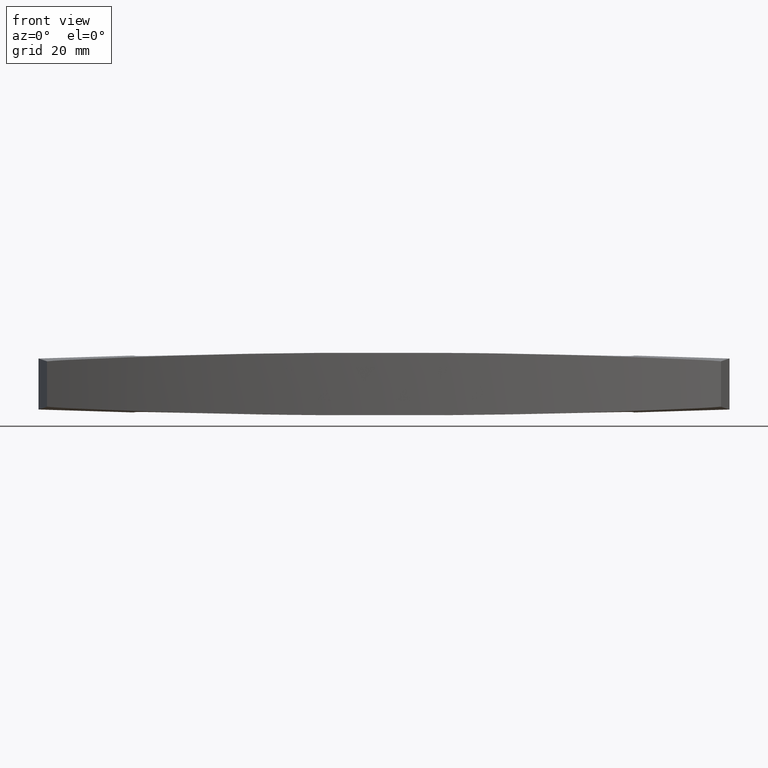
[diagram: clean part render]
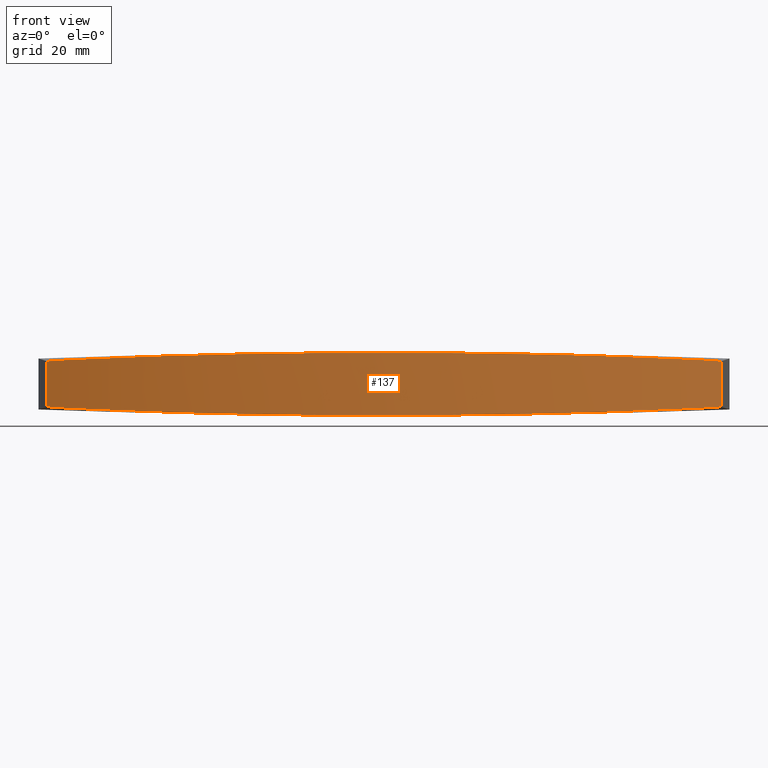
[diagram: same view with one face highlighted and labeled with its STEP entity id]
A machine part, front view. The second image highlights one B-rep face of the part: STEP entity #137.
In plain terms, the highlighted cylindrical surface (partial cylindrical patch) has radius 180 mm, axis along (-0, -0, -1).
Its self-contained STEP definition (entity closure, byte-faithful):
#137=ADVANCED_FACE('',(#308),#307,.T.);
#307=CYLINDRICAL_SURFACE('',#1145,1.80000000000E+02);
#308=FACE_OUTER_BOUND('',#1146,.T.);
#1142=CARTESIAN_POINT('',(3.72802577612E-14,-5.78756302586E+00,-1.51999600000E+02));
#1143=DIRECTION('',(-1.60136300863E-17,-1.00000000000E+00,1.05409681952E-17));
#1144=DIRECTION('',(3.61322985112E-01,-1.56149206220E-17,-9.32440722207E-01));
#1145=AXIS2_PLACEMENT_3D('',#1142,#1143,#1144);
#1146=EDGE_LOOP('',(#1466,#1467,#1468,#1469));
#1466=ORIENTED_EDGE('',*,*,#1570,.T.);
#1467=ORIENTED_EDGE('',*,*,#1571,.T.);
#1468=ORIENTED_EDGE('',*,*,#1572,.T.);
#1469=ORIENTED_EDGE('',*,*,#1547,.T.);
#1547=EDGE_CURVE('',#1806,#1807,#1808,.T.);
#1570=EDGE_CURVE('',#1807,#1960,#1961,.T.);
#1571=EDGE_CURVE('',#1960,#1967,#1968,.T.);
#1572=EDGE_CURVE('',#1967,#1806,#1974,.T.);
#1806=VERTEX_POINT('',#2171);
#1807=VERTEX_POINT('',#2172);
#1808=LINE('',#2173,#2174);
#1960=VERTEX_POINT('',#2520);
#1961=(BOUNDED_CURVE() B_SPLINE_CURVE(3,(#2521,#2522,#2523,#2524,#2525,#2526,#2527,#2528,#2529,#2530,#2531,#2532,#2533,#2534,#2535,#2536,#2537,#2538,#2539,#2540,#2541,#2542,#2543,#2544,#2545,#2546,#2547,#2548,#2549,#2550,#2551,#2552,#2553,#2554,#2555,#2556,#2557,#2558,#2559,#2560,#2561,#2562,#2563,#2564,#2565,#2566,#2567,#2568,#2569,#2570,#2571,#2572,#2573,#2574,#2575,#2576,#2577,#2578,#2579,#2580,#2581,#2582,#2583,#2584,#2585,#2586,#2587,#2588,#2589,#2590,#2591,#2592,#2593,#2594,#2595,#2596,#2597,#2598,#2599,#2600,#2601,#2602,#2603,#2604,#2605,#2606,#2607,#2608),.UNSPECIFIED.,.F.,.F.) B_SPLINE_CURVE_WITH_KNOTS((4,2,2,2,2,2,2,2,2,2,2,2,2,2,2,2,2,2,2,2,2,2,2,2,2,2,2,2,2,2,2,2,2,2,2,2,2,2,2,2,2,2,2,4),(0.00000000000E+00,7.81250000000E-03,1.56250000000E-02,3.12500000000E-02,4.68750000000E-02,6.25000000000E-02,7.81250000000E-02,9.37500000000E-02,1.25000000000E-01,1.56250000000E-01,1.87500000000E-01,2.18750000000E-01,2.34375000000E-01,2.50000000000E-01,2.81250000000E-01,3.12500000000E-01,3.43750000000E-01,3.75000000000E-01,3.90625000000E-01,4.06250000000E-01,4.37500000000E-01,5.00000000000E-01,5.15625000000E-01,5.31250000000E-01,5.62500000000E-01,5.93750000000E-01,6.25000000000E-01,6.56250000000E-01,6.71875000000E-01,6.87500000000E-01,7.18750000000E-01,7.50000000000E-01,7.81250000000E-01,8.12500000000E-01,8.43750000000E-01,8.75000000000E-01,9.06250000000E-01,9.21875000000E-01,9.37500000000E-01,9.53125000000E-01,9.68750000000E-01,9.84375000000E-01,9.92187500000E-01,1.00000000000E+00),.UNSPECIFIED.) CURVE() GEOMETRIC_REPRESENTATION_ITEM() RATIONAL_B_SPLINE_CURVE((1.00000000000E+00,1.00000000000E+00,1.00000000000E+00,1.00000000000E+00,1.00000000000E+00,1.00000000000E+00,1.00000000000E+00,1.00000000000E+00,1.00000000000E+00,1.00000000000E+00,1.00000000000E+00,1.00000000000E+00,1.00000000000E+00,1.00000000000E+00,1.00000000000E+00,1.00000000000E+00,1.00000000000E+00,1.00000000000E+00,1.00000000000E+00,1.00000000000E+00,1.00000000000E+00,1.00000000000E+00,1.00000000000E+00,1.00000000000E+00,1.00000000000E+00,1.00000000000E+00,1.00000000000E+00,1.00000000000E+00,1.00000000000E+00,1.00000000000E+00,1.00000000000E+00,1.00000000000E+00,1.00000000000E+00,1.00000000000E+00,1.00000000000E+00,1.00000000000E+00,1.00000000000E+00,1.00000000000E+00,1.00000000000E+00,1.00000000000E+00,1.00000000000E+00,1.00000000000E+00,1.00000000000E+00,1.00000000000E+00,1.00000000000E+00,1.00000000000E+00,1.00000000000E+00,1.00000000000E+00,1.00000000000E+00,1.00000000000E+00,1.00000000000E+00,1.00000000000E+00,1.00000000000E+00,1.00000000000E+00,1.00000000000E+00,1.00000000000E+00,1.00000000000E+00,1.00000000000E+00,1.00000000000E+00,1.00000000000E+00,1.00000000000E+00,1.00000000000E+00,1.00000000000E+00,1.00000000000E+00,1.00000000000E+00,1.00000000000E+00,1.00000000000E+00,1.00000000000E+00,1.00000000000E+00,1.00000000000E+00,1.00000000000E+00,1.00000000000E+00,1.00000000000E+00,1.00000000000E+00,1.00000000000E+00,1.00000000000E+00,1.00000000000E+00,1.00000000000E+00,1.00000000000E+00,1.00000000000E+00,1.00000000000E+00,1.00000000000E+00,1.00000000000E+00,1.00000000000E+00,1.00000000000E+00,1.00000000000E+00,1.00000000000E+00,1.00000000000E+00)) REPRESENTATION_ITEM('') );
#1967=VERTEX_POINT('',#2609);
#1968=LINE('',#2610,#2611);
#1974=(BOUNDED_CURVE() B_SPLINE_CURVE(3,(#2613,#2614,#2615,#2616,#2617,#2618,#2619,#2620,#2621,#2622,#2623,#2624,#2625,#2626,#2627,#2628,#2629,#2630,#2631,#2632,#2633,#2634,#2635,#2636,#2637,#2638,#2639,#2640,#2641,#2642,#2643,#2644,#2645,#2646,#2647,#2648,#2649,#2650,#2651,#2652,#2653,#2654,#2655,#2656,#2657,#2658,#2659,#2660,#2661,#2662,#2663,#2664,#2665,#2666,#2667,#2668,#2669,#2670,#2671,#2672,#2673,#2674,#2675,#2676,#2677,#2678,#2679,#2680,#2681,#2682,#2683,#2684,#2685,#2686,#2687,#2688,#2689,#2690,#2691,#2692,#2693,#2694,#2695,#2696,#2697,#2698,#2699,#2700),.UNSPECIFIED.,.F.,.F.) B_SPLINE_CURVE_WITH_KNOTS((4,2,2,2,2,2,2,2,2,2,2,2,2,2,2,2,2,2,2,2,2,2,2,2,2,2,2,2,2,2,2,2,2,2,2,2,2,2,2,2,2,2,2,4),(0.00000000000E+00,7.81250000000E-03,1.56250000000E-02,3.12500000000E-02,4.68750000000E-02,6.25000000000E-02,7.81250000000E-02,9.37500000000E-02,1.25000000000E-01,1.56250000000E-01,1.87500000000E-01,2.18750000000E-01,2.34375000000E-01,2.50000000000E-01,2.81250000000E-01,3.12500000000E-01,3.43750000000E-01,3.75000000000E-01,3.90625000000E-01,4.06250000000E-01,4.37500000000E-01,5.00000000000E-01,5.15625000000E-01,5.31250000000E-01,5.62500000000E-01,5.93750000000E-01,6.25000000000E-01,6.56250000000E-01,6.71875000000E-01,6.87500000000E-01,7.18750000000E-01,7.50000000000E-01,7.81250000000E-01,8.12500000000E-01,8.43750000000E-01,8.75000000000E-01,9.06250000000E-01,9.21875000000E-01,9.37500000000E-01,9.53125000000E-01,9.68750000000E-01,9.84375000000E-01,9.92187500000E-01,1.00000000000E+00),.UNSPECIFIED.) CURVE() GEOMETRIC_REPRESENTATION_ITEM() RATIONAL_B_SPLINE_CURVE((1.00000000000E+00,1.00000000000E+00,1.00000000000E+00,1.00000000000E+00,1.00000000000E+00,1.00000000000E+00,1.00000000000E+00,1.00000000000E+00,1.00000000000E+00,1.00000000000E+00,1.00000000000E+00,1.00000000000E+00,1.00000000000E+00,1.00000000000E+00,1.00000000000E+00,1.00000000000E+00,1.00000000000E+00,1.00000000000E+00,1.00000000000E+00,1.00000000000E+00,1.00000000000E+00,1.00000000000E+00,1.00000000000E+00,1.00000000000E+00,1.00000000000E+00,1.00000000000E+00,1.00000000000E+00,1.00000000000E+00,1.00000000000E+00,1.00000000000E+00,1.00000000000E+00,1.00000000000E+00,1.00000000000E+00,1.00000000000E+00,1.00000000000E+00,1.00000000000E+00,1.00000000000E+00,1.00000000000E+00,1.00000000000E+00,1.00000000000E+00,1.00000000000E+00,1.00000000000E+00,1.00000000000E+00,1.00000000000E+00,1.00000000000E+00,1.00000000000E+00,1.00000000000E+00,1.00000000000E+00,1.00000000000E+00,1.00000000000E+00,1.00000000000E+00,1.00000000000E+00,1.00000000000E+00,1.00000000000E+00,1.00000000000E+00,1.00000000000E+00,1.00000000000E+00,1.00000000000E+00,1.00000000000E+00,1.00000000000E+00,1.00000000000E+00,1.00000000000E+00,1.00000000000E+00,1.00000000000E+00,1.00000000000E+00,1.00000000000E+00,1.00000000000E+00,1.00000000000E+00,1.00000000000E+00,1.00000000000E+00,1.00000000000E+00,1.00000000000E+00,1.00000000000E+00,1.00000000000E+00,1.00000000000E+00,1.00000000000E+00,1.00000000000E+00,1.00000000000E+00,1.00000000000E+00,1.00000000000E+00,1.00000000000E+00,1.00000000000E+00,1.00000000000E+00,1.00000000000E+00,1.00000000000E+00,1.00000000000E+00,1.00000000000E+00,1.00000000000E+00)) REPRESENTATION_ITEM('') );
#2171=CARTESIAN_POINT('',(5.95003111203E+01,-4.00000370677E+00,1.78818674312E+01));
#2172=CARTESIAN_POINT('',(5.95003111203E+01,4.00000370677E+00,1.78818674312E+01));
#2173=CARTESIAN_POINT('',(5.95003111203E+01,-4.00000370677E+00,1.78818674312E+01));
#2174=VECTOR('',#2175,8.00000741353E+00);
#2175=DIRECTION('',(0.00000000000E+00,1.00000000000E+00,-6.21724317643E-15));
#2520=CARTESIAN_POINT('',(-5.95000020396E+01,4.00000067987E+00,1.78819756852E+01));
#2521=CARTESIAN_POINT('',(5.95003111203E+01,4.00000370677E+00,1.78818674312E+01));
#2522=CARTESIAN_POINT('',(5.92032873135E+01,4.03226352897E+00,1.79858988431E+01));
#2523=CARTESIAN_POINT('',(5.89056495036E+01,4.05863254470E+00,1.80892703982E+01));
#2524=CARTESIAN_POINT('',(5.83095238242E+01,4.10598444461E+00,1.82945537698E+01));
#2525=CARTESIAN_POINT('',(5.80110260940E+01,4.12680062711E+00,1.83964692087E+01));
#2526=CARTESIAN_POINT('',(5.71144498322E+01,4.18442191005E+00,1.86999542505E+01));
#2527=CARTESIAN_POINT('',(5.65152953233E+01,4.21651997325E+00,1.88992599143E+01));
#2528=CARTESIAN_POINT('',(5.53145778015E+01,4.27596830244E+00,1.92916619141E+01));
#2529=CARTESIAN_POINT('',(5.47130395249E+01,4.30312404561E+00,1.94847501394E+01));
#2530=CARTESIAN_POINT('',(5.35080892938E+01,4.35547825021E+00,1.98645423245E+01));
#2531=CARTESIAN_POINT('',(5.29046247796E+01,4.38063311621E+00,2.00512636708E+01));
#2532=CARTESIAN_POINT('',(5.16957790617E+01,4.43050355978E+00,2.04183382783E+01));
#2533=CARTESIAN_POINT('',(5.10903972866E+01,4.45520396008E+00,2.05986917684E+01));
#2534=CARTESIAN_POINT('',(4.98777490414E+01,4.50499183191E+00,2.09530211621E+01));
#2535=CARTESIAN_POINT('',(4.92704842915E+01,4.53012313688E+00,2.11269966392E+01));
#2536=CARTESIAN_POINT('',(4.74458572527E+01,4.60596754344E+00,2.16393558087E+01));
#2537=CARTESIAN_POINT('',(4.62255998369E+01,4.65699549515E+00,2.19681817233E+01));
#2538=CARTESIAN_POINT('',(4.37798291078E+01,4.75656015355E+00,2.25997176427E+01));
#2539=CARTESIAN_POINT('',(4.25540178604E+01,4.80513417926E+00,2.29025139393E+01));
#2540=CARTESIAN_POINT('',(4.00964714505E+01,4.89744186901E+00,2.34822135127E+01));
#2541=CARTESIAN_POINT('',(3.88647244658E+01,4.94081557776E+00,2.37591192811E+01));
#2542=CARTESIAN_POINT('',(3.63952813312E+01,5.02200582181E+00,2.42870350803E+01));
#2543=CARTESIAN_POINT('',(3.51575906172E+01,5.05998823838E+00,2.45380439084E+01));
#2544=CARTESIAN_POINT('',(3.32966033724E+01,5.11332849112E+00,2.48951008182E+01));
#2545=CARTESIAN_POINT('',(3.26755323595E+01,5.13050270522E+00,2.50108768035E+01));
#2546=CARTESIAN_POINT('',(3.14319078387E+01,5.16373665084E+00,2.52359339168E+01));
#2547=CARTESIAN_POINT('',(3.08092502379E+01,5.17980026845E+00,2.53452324667E+01));
#2548=CARTESIAN_POINT('',(2.89399169472E+01,5.22650403062E+00,2.56632245261E+01));
#2549=CARTESIAN_POINT('',(2.76920101662E+01,5.25568016511E+00,2.58619992859E+01));
#2550=CARTESIAN_POINT('',(2.51928206803E+01,5.30933803404E+00,2.62331627395E+01));
#2551=CARTESIAN_POINT('',(2.39415377079E+01,5.33380451186E+00,2.64055514141E+01));
#2552=CARTESIAN_POINT('',(2.14355982772E+01,5.37806897043E+00,2.67239586189E+01));
#2553=CARTESIAN_POINT('',(2.01809429789E+01,5.39793497607E+00,2.68699769696E+01));
#2554=CARTESIAN_POINT('',(1.76682688761E+01,5.43371649871E+00,2.71356235037E+01));
#2555=CARTESIAN_POINT('',(1.64102481066E+01,5.44951667594E+00,2.72552520054E+01));
#2556=CARTESIAN_POINT('',(1.45206720648E+01,5.46925252124E+00,2.74148632837E+01));
#2557=CARTESIAN_POINT('',(1.38902814516E+01,5.47516880123E+00,2.74647691565E+01));
#2558=CARTESIAN_POINT('',(1.26292557735E+01,5.48550980932E+00,2.75579161728E+01));
#2559=CARTESIAN_POINT('',(1.19986430970E+01,5.48993450959E+00,2.76011571118E+01));
#2560=CARTESIAN_POINT('',(1.01065055231E+01,5.50072437835E+00,2.77208944108E+01));
#2561=CARTESIAN_POINT('',(8.84468048337E+00,5.50420935209E+00,2.77874063855E+01));
#2562=CARTESIAN_POINT('',(5.05801285273E+00,5.50716231843E+00,2.79470605904E+01));
#2563=CARTESIAN_POINT('',(2.53197966361E+00,5.50000746627E+00,2.80003384054E+01));
#2564=CARTESIAN_POINT('',(-6.27516680656E-01,5.49999814068E+00,2.80004153319E+01));
#2565=CARTESIAN_POINT('',(-1.25951372926E+00,5.50044509590E+00,2.79971033415E+01));
#2566=CARTESIAN_POINT('',(-2.52370441451E+00,5.50172694503E+00,2.79838173047E+01));
#2567=CARTESIAN_POINT('',(-3.15600299155E+00,5.50256192791E+00,2.79738407180E+01));
#2568=CARTESIAN_POINT('',(-5.05228239328E+00,5.50488143622E+00,2.79339247186E+01));
#2569=CARTESIAN_POINT('',(-6.31560053629E+00,5.50617819347E+00,2.78940068146E+01));
#2570=CARTESIAN_POINT('',(-8.84047921675E+00,5.50421820363E+00,2.77876145347E+01));
#2571=CARTESIAN_POINT('',(-1.01020383831E+01,5.50073938609E+00,2.77211402437E+01));
#2572=CARTESIAN_POINT('',(-1.26233830082E+01,5.48637709291E+00,2.75616593369E+01));
#2573=CARTESIAN_POINT('',(-1.38831709444E+01,5.47589406610E+00,2.74686526439E+01));
#2574=CARTESIAN_POINT('',(-1.64009852625E+01,5.44961992897E+00,2.72560939819E+01));
#2575=CARTESIAN_POINT('',(-1.76590116754E+01,5.43383379765E+00,2.71365420127E+01));
#2576=CARTESIAN_POINT('',(-1.95447328431E+01,5.40699507858E+00,2.69372685744E+01));
#2577=CARTESIAN_POINT('',(-2.01731941471E+01,5.39753075033E+00,2.68675067019E+01));
#2578=CARTESIAN_POINT('',(-2.14290369128E+01,5.37758968133E+00,2.67214004421E+01));
#2579=CARTESIAN_POINT('',(-2.20564163170E+01,5.36709388205E+00,2.66450578111E+01));
#2580=CARTESIAN_POINT('',(-2.39369273242E+01,5.33388323356E+00,2.64061750495E+01));
#2581=CARTESIAN_POINT('',(-2.51884311548E+01,5.30941276815E+00,2.62337812518E+01));
#2582=CARTESIAN_POINT('',(-2.76871047865E+01,5.25577467198E+00,2.58627610689E+01));
#2583=CARTESIAN_POINT('',(-2.89342749775E+01,5.22662361082E+00,2.56641346879E+01));
#2584=CARTESIAN_POINT('',(-3.14243015391E+01,5.16444229515E+00,2.52406554853E+01));
#2585=CARTESIAN_POINT('',(-3.26671568774E+01,5.13136788849E+00,2.50158026960E+01));
#2586=CARTESIAN_POINT('',(-3.51485251504E+01,5.06027083239E+00,2.45398491603E+01));
#2587=CARTESIAN_POINT('',(-3.63872828938E+01,5.02226155496E+00,2.42886955330E+01));
#2588=CARTESIAN_POINT('',(-3.88592908320E+01,4.94099530247E+00,2.37603300591E+01));
#2589=CARTESIAN_POINT('',(-4.00921548012E+01,4.89759046104E+00,2.34832067923E+01));
#2590=CARTESIAN_POINT('',(-4.25516079399E+01,4.80519966952E+00,2.29031072919E+01));
#2591=CARTESIAN_POINT('',(-4.37782096727E+01,4.75657003367E+00,2.26001284198E+01));
#2592=CARTESIAN_POINT('',(-4.62252473410E+01,4.65691433205E+00,2.19682801235E+01));
#2593=CARTESIAN_POINT('',(-4.74452605935E+01,4.60589279173E+00,2.16395183252E+01));
#2594=CARTESIAN_POINT('',(-4.92697871490E+01,4.53010906252E+00,2.11271949096E+01));
#2595=CARTESIAN_POINT('',(-4.98770662396E+01,4.50500469469E+00,2.09532183032E+01));
#2596=CARTESIAN_POINT('',(-5.10898364304E+01,4.45524674056E+00,2.05988580151E+01));
#2597=CARTESIAN_POINT('',(-5.16953257986E+01,4.43054825102E+00,2.04184747651E+01));
#2598=CARTESIAN_POINT('',(-5.29044783844E+01,4.38062246126E+00,2.00513092739E+01));
#2599=CARTESIAN_POINT('',(-5.35080414125E+01,4.35541359141E+00,1.98645571693E+01));
#2600=CARTESIAN_POINT('',(-5.47129593729E+01,4.30289828906E+00,1.94847756497E+01));
#2601=CARTESIAN_POINT('',(-5.53143327037E+01,4.27563550774E+00,1.92917404779E+01));
#2602=CARTESIAN_POINT('',(-5.65147496647E+01,4.21596228150E+00,1.88994397735E+01));
#2603=CARTESIAN_POINT('',(-5.71138026024E+01,4.18373650292E+00,1.87001707511E+01));
#2604=CARTESIAN_POINT('',(-5.80103589176E+01,4.12607361370E+00,1.83966963324E+01));
#2605=CARTESIAN_POINT('',(-5.83088723496E+01,4.10526903878E+00,1.82947769362E+01));
#2606=CARTESIAN_POINT('',(-5.89051006947E+01,4.05809143125E+00,1.80894605621E+01));
#2607=CARTESIAN_POINT('',(-5.92028233367E+01,4.03187142555E+00,1.79860607418E+01));
#2608=CARTESIAN_POINT('',(-5.95000020396E+01,4.00000067987E+00,1.78819756852E+01));
#2609=CARTESIAN_POINT('',(-5.95000020396E+01,-4.00000067987E+00,1.78819756852E+01));
#2610=CARTESIAN_POINT('',(-5.95000020396E+01,4.00000067987E+00,1.78819756852E+01));
#2611=VECTOR('',#2612,8.00000135974E+00);
#2612=DIRECTION('',(6.12843005430E-14,-1.00000000000E+00,4.39648243026E-14));
#2613=CARTESIAN_POINT('',(-5.95000020396E+01,-4.00000067987E+00,1.78819756852E+01));
#2614=CARTESIAN_POINT('',(-5.92029516510E+01,-4.03185766457E+00,1.79860158006E+01));
#2615=CARTESIAN_POINT('',(-5.89053025305E+01,-4.05807386481E+00,1.80893905764E+01));
#2616=CARTESIAN_POINT('',(-5.83091622335E+01,-4.10524769573E+00,1.82946775936E+01));
#2617=CARTESIAN_POINT('',(-5.80106620605E+01,-4.12605301133E+00,1.83965931438E+01));
#2618=CARTESIAN_POINT('',(-5.71140835622E+01,-4.18372064196E+00,1.87000768047E+01));
#2619=CARTESIAN_POINT('',(-5.65149342316E+01,-4.21595298843E+00,1.88993793056E+01));
#2620=CARTESIAN_POINT('',(-5.53142257721E+01,-4.27564094152E+00,1.92917755743E+01));
#2621=CARTESIAN_POINT('',(-5.47126918775E+01,-4.30291030168E+00,1.94848610446E+01));
#2622=CARTESIAN_POINT('',(-5.35077477284E+01,-4.35542603714E+00,1.98646486537E+01));
#2623=CARTESIAN_POINT('',(-5.29042850294E+01,-4.38063045895E+00,2.00513681374E+01));
#2624=CARTESIAN_POINT('',(-5.16954407477E+01,-4.43054349071E+00,2.04184397099E+01));
#2625=CARTESIAN_POINT('',(-5.10900586211E+01,-4.45523766240E+00,2.05987920172E+01));
#2626=CARTESIAN_POINT('',(-4.98774088092E+01,-4.50499060169E+00,2.09531192828E+01));
#2627=CARTESIAN_POINT('',(-4.92701428886E+01,-4.53009431755E+00,2.11270938013E+01));
#2628=CARTESIAN_POINT('',(-4.74455133676E+01,-4.60588223036E+00,2.16394497804E+01));
#2629=CARTESIAN_POINT('',(-4.62252560654E+01,-4.65691352071E+00,2.19682730587E+01));
#2630=CARTESIAN_POINT('',(-4.37794865014E+01,-4.75651849057E+00,2.25998035401E+01));
#2631=CARTESIAN_POINT('',(-4.25536759854E+01,-4.80511778257E+00,2.29025971121E+01));
#2632=CARTESIAN_POINT('',(-4.00961299841E+01,-4.89744532028E+00,2.34822915295E+01));
#2633=CARTESIAN_POINT('',(-3.88643828333E+01,-4.94081851929E+00,2.37591948207E+01));
#2634=CARTESIAN_POINT('',(-3.63949396795E+01,-5.02201917864E+00,2.42871056121E+01));
#2635=CARTESIAN_POINT('',(-3.51572490008E+01,-5.06000904855E+00,2.45381119397E+01));
#2636=CARTESIAN_POINT('',(-3.32962613663E+01,-5.11334841058E+00,2.48951651927E+01));
#2637=CARTESIAN_POINT('',(-3.26751901541E+01,-5.13052045223E+00,2.50109399732E+01));
#2638=CARTESIAN_POINT('',(-3.14315651356E+01,-5.16374751468E+00,2.52359946934E+01));
#2639=CARTESIAN_POINT('',(-3.08089072058E+01,-5.17980647495E+00,2.53452920591E+01));
#2640=CARTESIAN_POINT('',(-2.89395738198E+01,-5.22649831122E+00,2.56632804161E+01));
#2641=CARTESIAN_POINT('',(-2.76916670158E+01,-5.25567131950E+00,2.58620527095E+01));
#2642=CARTESIAN_POINT('',(-2.51924775433E+01,-5.30933130401E+00,2.62332112383E+01));
#2643=CARTESIAN_POINT('',(-2.39411945849E+01,-5.33380171313E+00,2.64055974583E+01));
#2644=CARTESIAN_POINT('',(-2.14352550288E+01,-5.37806999697E+00,2.67239997851E+01));
#2645=CARTESIAN_POINT('',(-2.01805995903E+01,-5.39793585876E+00,2.68700157116E+01));
#2646=CARTESIAN_POINT('',(-1.76679251038E+01,-5.43371605875E+00,2.71356574095E+01));
#2647=CARTESIAN_POINT('',(-1.64099040958E+01,-5.44951535398E+00,2.72552834987E+01));
#2648=CARTESIAN_POINT('',(-1.45203276474E+01,-5.46925084425E+00,2.74148911585E+01));
#2649=CARTESIAN_POINT('',(-1.38899368571E+01,-5.47516714487E+00,2.74647958262E+01));
#2650=CARTESIAN_POINT('',(-1.26289116036E+01,-5.48550846393E+00,2.75579403787E+01));
#2651=CARTESIAN_POINT('',(-1.19982991230E+01,-5.48993345888E+00,2.76011800905E+01));
#2652=CARTESIAN_POINT('',(-1.01061620864E+01,-5.50072442458E+00,2.77209137199E+01));
#2653=CARTESIAN_POINT('',(-8.84433733792E+00,-5.50421030372E+00,2.77874232640E+01));
#2654=CARTESIAN_POINT('',(-5.05767037821E+00,-5.50716447425E+00,2.79470702073E+01));
#2655=CARTESIAN_POINT('',(-2.53163736666E+00,-5.50000846775E+00,2.80003432212E+01));
#2656=CARTESIAN_POINT('',(6.27859080200E-01,-5.49999789239E+00,2.80004141380E+01));
#2657=CARTESIAN_POINT('',(1.25985616558E+00,-5.50044458930E+00,2.79971009453E+01));
#2658=CARTESIAN_POINT('',(2.52404695718E+00,-5.50172595440E+00,2.79838125015E+01));
#2659=CARTESIAN_POINT('',(3.15634562541E+00,-5.50256071327E+00,2.79738347081E+01));
#2660=CARTESIAN_POINT('',(5.05262390970E+00,-5.50487972974E+00,2.79339151241E+01));
#2661=CARTESIAN_POINT('',(6.31594140047E+00,-5.50617643683E+00,2.78939948443E+01));
#2662=CARTESIAN_POINT('',(8.84081896898E+00,-5.50421725567E+00,2.77875978249E+01));
#2663=CARTESIAN_POINT('',(1.01023776763E+01,-5.50073935188E+00,2.77211211703E+01));
#2664=CARTESIAN_POINT('',(1.26237215715E+01,-5.48637854702E+00,2.75616355336E+01));
#2665=CARTESIAN_POINT('',(1.38835092350E+01,-5.47589591715E+00,2.74686264745E+01));
#2666=CARTESIAN_POINT('',(1.64013231862E+01,-5.44962132717E+00,2.72560630634E+01));
#2667=CARTESIAN_POINT('',(1.76593495047E+01,-5.43383432190E+00,2.71365087114E+01));
#2668=CARTESIAN_POINT('',(1.95450706706E+01,-5.40699461365E+00,2.69372316747E+01));
#2669=CARTESIAN_POINT('',(2.01735319977E+01,-5.39753002656E+00,2.68674685964E+01));
#2670=CARTESIAN_POINT('',(2.14293737162E+01,-5.37758919254E+00,2.67213600569E+01));
#2671=CARTESIAN_POINT('',(2.20567526358E+01,-5.36709392311E+00,2.66450162860E+01));
#2672=CARTESIAN_POINT('',(2.39372623069E+01,-5.33388617440E+00,2.64061300999E+01));
#2673=CARTESIAN_POINT('',(2.51887654102E+01,-5.30941966619E+00,2.62337340112E+01));
#2674=CARTESIAN_POINT('',(2.76874376864E+01,-5.25578375295E+00,2.58627092451E+01));
#2675=CARTESIAN_POINT('',(2.89346072195E+01,-5.22662961303E+00,2.56640805769E+01));
#2676=CARTESIAN_POINT('',(3.14246324727E+01,-5.16443248685E+00,2.52405968094E+01));
#2677=CARTESIAN_POINT('',(3.26674872358E+01,-5.13134862469E+00,2.50157417313E+01));
#2678=CARTESIAN_POINT('',(3.51488549883E+01,-5.06025034712E+00,2.45397834915E+01));
#2679=CARTESIAN_POINT('',(3.63876132527E+01,-5.02224851099E+00,2.42886273410E+01));
#2680=CARTESIAN_POINT('',(3.88596193639E+01,-4.94099279609E+00,2.37602574195E+01));
#2681=CARTESIAN_POINT('',(4.00924823787E+01,-4.89758749582E+00,2.34831319519E+01));
#2682=CARTESIAN_POINT('',(4.25519346532E+01,-4.80521662242E+00,2.29030278071E+01));
#2683=CARTESIAN_POINT('',(4.37785366433E+01,-4.75661229704E+00,2.26000464426E+01));
#2684=CARTESIAN_POINT('',(4.62255747369E+01,-4.65699698801E+00,2.19681931364E+01));
#2685=CARTESIAN_POINT('',(4.74455864776E+01,-4.60597885914E+00,2.16394292663E+01));
#2686=CARTESIAN_POINT('',(4.92701093353E+01,-4.53013869254E+00,2.11271032155E+01));
#2687=CARTESIAN_POINT('',(4.98773868859E+01,-4.50500674516E+00,2.09531258301E+01));
#2688=CARTESIAN_POINT('',(5.10901548260E+01,-4.45521387067E+00,2.05987637654E+01));
#2689=CARTESIAN_POINT('',(5.16956435254E+01,-4.43050915730E+00,2.04183795050E+01));
#2690=CARTESIAN_POINT('',(5.29047969064E+01,-4.38062600916E+00,2.00512113331E+01));
#2691=CARTESIAN_POINT('',(5.35083614204E+01,-4.35546674512E+00,1.98644575519E+01));
#2692=CARTESIAN_POINT('',(5.47132858785E+01,-4.30311302297E+00,1.94846714900E+01));
#2693=CARTESIAN_POINT('',(5.53146641355E+01,-4.27596384945E+00,1.92916334716E+01));
#2694=CARTESIAN_POINT('',(5.65150915692E+01,-4.21653023977E+00,1.88993267303E+01));
#2695=CARTESIAN_POINT('',(5.71141504720E+01,-4.18443877576E+00,1.87000543628E+01));
#2696=CARTESIAN_POINT('',(5.80107078617E+01,-4.12682226518E+00,1.83965775373E+01));
#2697=CARTESIAN_POINT('',(5.83092203163E+01,-4.10600683561E+00,1.82946577826E+01));
#2698=CARTESIAN_POINT('',(5.89054387849E+01,-4.05865099864E+00,1.80893434654E+01));
#2699=CARTESIAN_POINT('',(5.92031532592E+01,-4.03227808863E+00,1.79859457951E+01));
#2700=CARTESIAN_POINT('',(5.95003111203E+01,-4.00000370677E+00,1.78818674312E+01));